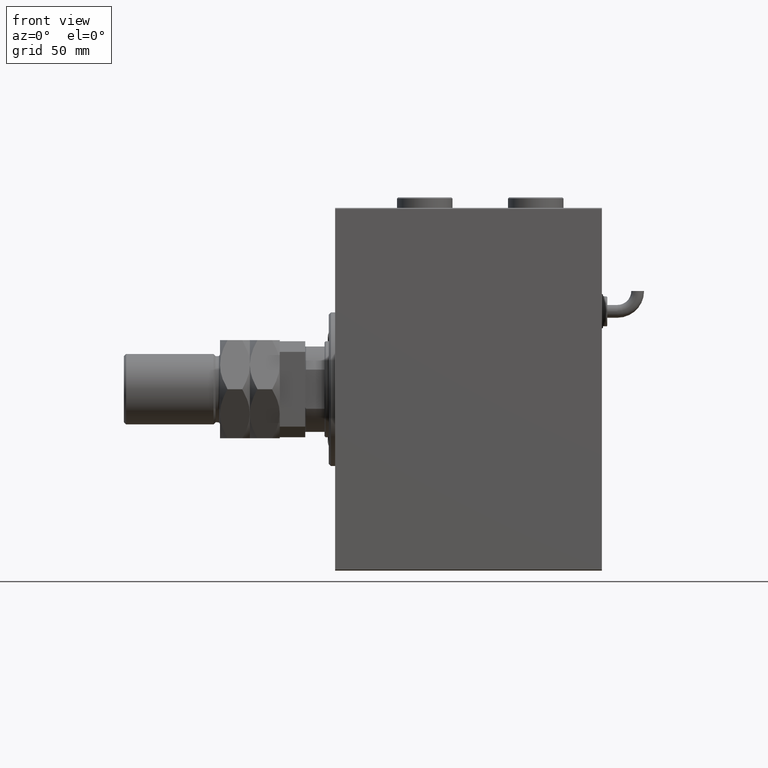
[diagram: clean part render]
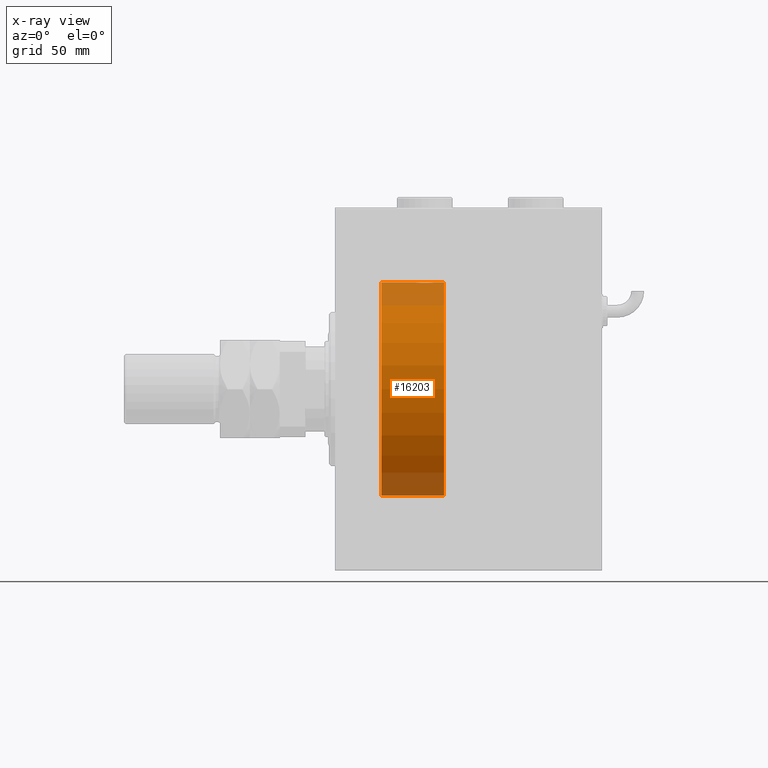
[diagram: x-ray — body ghosted, one internal face saturated and labeled with its STEP entity id]
A machine part, front view, then the same camera in x-ray: the body is ghosted and one INTERNAL B-rep face — a face not visible from any outside direction — is saturated and labeled: STEP entity #16203.
In plain terms, the highlighted cylindrical surface (partial cylindrical patch) has radius 50 mm, axis along (-1, -0, -0).
Its self-contained STEP definition (entity closure, byte-faithful):
#1111 = CARTESIAN_POINT ( 'NONE',  ( 51.00000000000000711, 0.000000000000000000, 0.000000000000000000 ) ) ;
#1148 = EDGE_CURVE ( 'NONE', #29917, #13788, #14360, .T. ) ;
#1401 = LINE ( 'NONE', #58990, #21877 ) ;
#1895 = VERTEX_POINT ( 'NONE', #3718 ) ;
#1946 = CARTESIAN_POINT ( 'NONE',  ( 45.68602832121950286, -2.133925816755187110, 49.95498245321557818 ) ) ;
#1950 = CARTESIAN_POINT ( 'NONE',  ( 40.63289352445426772, -4.033756670430848068, -49.83713703490974467 ) ) ;
#2584 = CARTESIAN_POINT ( 'NONE',  ( 37.96920203844656783, -1.375411031076042789, -49.98173289062309976 ) ) ;
#2889 = CARTESIAN_POINT ( 'NONE',  ( 38.31397167878049714, -2.133925816755183114, -49.95498245321557818 ) ) ;
#3201 = CARTESIAN_POINT ( 'NONE',  ( 44.80697831839309941, -3.203153387937325736, 49.89767833571684719 ) ) ;
#3226 = EDGE_CURVE ( 'NONE', #18133, #21623, #10389, .T. ) ;
#3718 = CARTESIAN_POINT ( 'NONE',  ( 46.25000000000000000, 6.123233970928975205E-15, -50.00000000000000000 ) ) ;
#4027 = VECTOR ( 'NONE', #29621, 1000.000000000000000 ) ;
#4465 = CARTESIAN_POINT ( 'NONE',  ( 37.75000000000000711, -2.480809774739037926E-23, 50.00000000000000000 ) ) ;
#5937 = CARTESIAN_POINT ( 'NONE',  ( 51.00000000000000711, 6.123233995736766085E-15, -50.00000000000000000 ) ) ;
#6007 = DIRECTION ( 'NONE',  ( -1.000000000000000000, 0.000000000000000000, 0.000000000000000000 ) ) ;
#6741 = CARTESIAN_POINT ( 'NONE',  ( 43.10323296034216156, -4.113647494206476907, -49.83052139214892406 ) ) ;
#7047 = CARTESIAN_POINT ( 'NONE',  ( 43.09737617879038396, -4.115209769591117173, 49.83039196709102470 ) ) ;
#7991 = CARTESIAN_POINT ( 'NONE',  ( 43.36710647554575360, -4.033756670430856062, 49.83713703490974467 ) ) ;
#9262 = CARTESIAN_POINT ( 'NONE',  ( 21.60000000000000142, 0.000000000000000000, 50.00000000000000000 ) ) ;
#10389 = LINE ( 'NONE', #5937, #50876 ) ;
#10570 = CARTESIAN_POINT ( 'NONE',  ( 46.25000000000000000, 6.123233970928975205E-15, -50.00000000000000000 ) ) ;
#11834 = CARTESIAN_POINT ( 'NONE',  ( 42.55408564880149669, -4.222816005855214883, 49.82138837911247009 ) ) ;
#11840 = CARTESIAN_POINT ( 'NONE',  ( 43.37333436579036317, -4.031616700143180410, -49.83731072121798888 ) ) ;
#12461 = CARTESIAN_POINT ( 'NONE',  ( 39.19302168160691480, -3.203153387937319962, -49.89767833571684719 ) ) ;
#13381 = CARTESIAN_POINT ( 'NONE',  ( 37.75000000000000711, -7.073857814331912646E-15, -50.00000000000000000 ) ) ;
#13788 = VERTEX_POINT ( 'NONE', #9262 ) ;
#14143 = CARTESIAN_POINT ( 'NONE',  ( 51.00000000000000711, 0.000000000000000000, 0.000000000000000000 ) ) ;
#14360 = LINE ( 'NONE', #33436, #4027 ) ;
#14450 = DIRECTION ( 'NONE',  ( 0.000000000000000000, 0.000000000000000000, 1.000000000000000000 ) ) ;
#15570 = AXIS2_PLACEMENT_3D ( 'NONE', #14143, #28766, #14450 ) ;
#15649 = CARTESIAN_POINT ( 'NONE',  ( 46.25000000000000000, -0.2773743941468464480, -50.00000000000000711 ) ) ;
#15863 = CIRCLE ( 'NONE', #51398, 50.00000000000000000 ) ;
#15958 = CARTESIAN_POINT ( 'NONE',  ( 43.88744739392799943, -3.818052230167712668, -49.85412671291930309 ) ) ;
#16203 = ADVANCED_FACE ( 'NONE', ( #37981 ), #62183, .F. ) ;
#16270 = CARTESIAN_POINT ( 'NONE',  ( 45.68937155679385853, -2.128188802142358949, -49.95522967821975158 ) ) ;
#16581 = CARTESIAN_POINT ( 'NONE',  ( 38.17899418014773971, -1.881229021238129517, 49.96525240872482954 ) ) ;
#16887 = CARTESIAN_POINT ( 'NONE',  ( 41.44002132304353125, -4.222042462213131842, 49.82145436824653473 ) ) ;
#17812 = CARTESIAN_POINT ( 'NONE',  ( 37.75000000000000711, -2.480809774739037926E-23, 50.00000000000000000 ) ) ;
#18133 = VERTEX_POINT ( 'NONE', #41592 ) ;
#18750 = CARTESIAN_POINT ( 'NONE',  ( 46.03079796155342507, -1.375411031076047008, 49.98173289062309976 ) ) ;
#19253 = ORIENTED_EDGE ( 'NONE', *, *, #48140, .T. ) ;
#20512 = DIRECTION ( 'NONE',  ( -1.000000000000000000, 0.000000000000000000, 0.000000000000000000 ) ) ;
#21348 = CARTESIAN_POINT ( 'NONE',  ( 45.81839248987871827, -1.886522330773423128, 49.96505190380066352 ) ) ;
#21352 = CARTESIAN_POINT ( 'NONE',  ( 40.11782950515556934, -3.820681512513381506, -49.85392475515401145 ) ) ;
#21443 = EDGE_LOOP ( 'NONE', ( #39191, #39267, #31153, #22257, #19253, #28801, #48895, #44135 ) ) ;
#21623 = VERTEX_POINT ( 'NONE', #35836 ) ;
#21877 = VECTOR ( 'NONE', #49419, 1000.000000000000000 ) ;
#21976 = CARTESIAN_POINT ( 'NONE',  ( 38.18160751012128884, -1.886522330773416911, -49.96505190380066352 ) ) ;
#22069 = VERTEX_POINT ( 'NONE', #46255 ) ;
#22257 = ORIENTED_EDGE ( 'NONE', *, *, #3226, .T. ) ;
#22288 = CARTESIAN_POINT ( 'NONE',  ( 37.77689247201000455, -0.5531336717329051744, 49.99769193709643389 ) ) ;
#22684 = CARTESIAN_POINT ( 'NONE',  ( 51.00000000000000711, 0.000000000000000000, 50.00000000000000000 ) ) ;
#22903 = CARTESIAN_POINT ( 'NONE',  ( 37.75000000000001421, -0.2808785465865695774, -50.00000000000001421 ) ) ;
#23169 = DIRECTION ( 'NONE',  ( -1.000000000000000000, -0.000000000000000000, -0.000000000000000000 ) ) ;
#23206 = CARTESIAN_POINT ( 'NONE',  ( 46.22242635520780851, -0.5587117664567147202, 49.99763378604802000 ) ) ;
#24190 = EDGE_CURVE ( 'NONE', #36857, #1895, #1401, .T. ) ;
#24551 = EDGE_CURVE ( 'NONE', #29917, #22069, #47765, .T. ) ;
#25972 = DIRECTION ( 'NONE',  ( -1.000000000000000000, -0.000000000000000000, -0.000000000000000000 ) ) ;
#26135 = CARTESIAN_POINT ( 'NONE',  ( 46.03272642097311973, -1.369753890039645983, -49.98188917176553048 ) ) ;
#26448 = CARTESIAN_POINT ( 'NONE',  ( 45.37519984081967550, -2.597781786597471942, 49.93300953359122474 ) ) ;
#26756 = CARTESIAN_POINT ( 'NONE',  ( 44.12631644875079928, -3.690299572754728530, 49.86386974736159772 ) ) ;
#27069 = CARTESIAN_POINT ( 'NONE',  ( 40.89676703965783844, -4.113647494206490229, 49.83052139214891696 ) ) ;
#27073 = CARTESIAN_POINT ( 'NONE',  ( 37.77757364479220570, -0.5587117664567219366, -49.99763378604802000 ) ) ;
#27374 = CARTESIAN_POINT ( 'NONE',  ( 43.88217049484444487, -3.820681512513388611, 49.85392475515401145 ) ) ;
#27379 = CARTESIAN_POINT ( 'NONE',  ( 38.62480015918034582, -2.597781786597465725, -49.93300953359122474 ) ) ;
#27995 = CARTESIAN_POINT ( 'NONE',  ( 46.25000000000000711, -0.2808785465865644704, 50.00000000000001421 ) ) ;
#28766 = DIRECTION ( 'NONE',  ( -1.000000000000000000, -0.000000000000000000, -0.000000000000000000 ) ) ;
#28801 = ORIENTED_EDGE ( 'NONE', *, *, #1148, .F. ) ;
#29621 = DIRECTION ( 'NONE',  ( -1.000000000000000000, -0.000000000000000000, -0.000000000000000000 ) ) ;
#29917 = VERTEX_POINT ( 'NONE', #4465 ) ;
#29969 = CARTESIAN_POINT ( 'NONE',  ( 41.44591435119853173, -4.222816005855206001, -49.82138837911246299 ) ) ;
#30604 = CARTESIAN_POINT ( 'NONE',  ( 40.90262382120964446, -4.115209769591110067, -49.83039196709102470 ) ) ;
#31153 = ORIENTED_EDGE ( 'NONE', *, *, #56920, .T. ) ;
#31211 = CARTESIAN_POINT ( 'NONE',  ( 37.96727357902688738, -1.369753890039655753, 49.98188917176553048 ) ) ;
#31833 = CARTESIAN_POINT ( 'NONE',  ( 39.18846933484581285, -3.199146701881677934, 49.89793607725460589 ) ) ;
#32461 = CARTESIAN_POINT ( 'NONE',  ( 45.19921927961282648, -2.811461347331111416, 49.92127983148852621 ) ) ;
#33203 = CARTESIAN_POINT ( 'NONE',  ( 51.00000000000000711, 6.123233995736766085E-15, -50.00000000000000000 ) ) ;
#33336 = LINE ( 'NONE', #55747, #54042 ) ;
#33436 = CARTESIAN_POINT ( 'NONE',  ( 51.00000000000000711, 0.000000000000000000, 50.00000000000000000 ) ) ;
#35034 = CARTESIAN_POINT ( 'NONE',  ( 45.37881717263736192, -2.593114840406122390, -49.93325460257641168 ) ) ;
#35344 = CARTESIAN_POINT ( 'NONE',  ( 42.28395287026698668, -4.249777379711400904, -49.81906655360197789 ) ) ;
#35662 = CARTESIAN_POINT ( 'NONE',  ( 46.11431913306007857, -1.101350136471736629, -49.98862054280448319 ) ) ;
#35836 = CARTESIAN_POINT ( 'NONE',  ( 21.60000000000000142, 6.123233995736766085E-15, -50.00000000000000000 ) ) ;
#35974 = CARTESIAN_POINT ( 'NONE',  ( 42.27724927037917979, -4.250219976861652427, 49.81902879621013369 ) ) ;
#35978 = CARTESIAN_POINT ( 'NONE',  ( 39.87368355124922203, -3.690299572754720980, -49.86386974736159772 ) ) ;
#36535 = CIRCLE ( 'NONE', #52783, 50.00000000000000000 ) ;
#36606 = CARTESIAN_POINT ( 'NONE',  ( 38.80078072038717352, -2.811461347331107419, -49.92127983148852621 ) ) ;
#36857 = VERTEX_POINT ( 'NONE', #33203 ) ;
#36910 = CARTESIAN_POINT ( 'NONE',  ( 39.40687279114045083, -3.378657745070629659, 49.88595615988430154 ) ) ;
#37981 = FACE_OUTER_BOUND ( 'NONE', #21443, .T. ) ;
#38770 = CARTESIAN_POINT ( 'NONE',  ( 46.25000000000000000, -8.399120439301708033E-16, 50.00000000000000000 ) ) ;
#39191 = ORIENTED_EDGE ( 'NONE', *, *, #60882, .F. ) ;
#39267 = ORIENTED_EDGE ( 'NONE', *, *, #24190, .T. ) ;
#39379 = CARTESIAN_POINT ( 'NONE',  ( 21.60000000000000142, 0.000000000000000000, 0.000000000000000000 ) ) ;
#39918 = DIRECTION ( 'NONE',  ( 0.000000000000000000, 0.000000000000000000, 1.000000000000000000 ) ) ;
#40136 = CARTESIAN_POINT ( 'NONE',  ( 44.59312720885956338, -3.378657745070617224, -49.88595615988430154 ) ) ;
#41061 = CARTESIAN_POINT ( 'NONE',  ( 39.86863600553844122, -3.687400765141535253, 49.86408552998298660 ) ) ;
#41064 = CARTESIAN_POINT ( 'NONE',  ( 44.81153066515419425, -3.199146701881665500, -49.89793607725460589 ) ) ;
#41592 = CARTESIAN_POINT ( 'NONE',  ( 37.75000000000000711, -7.073857814331912646E-15, -50.00000000000000000 ) ) ;
#41690 = CARTESIAN_POINT ( 'NONE',  ( 37.75000000000001421, -0.2773743941468522767, 50.00000000000000711 ) ) ;
#44135 = ORIENTED_EDGE ( 'NONE', *, *, #62973, .F. ) ;
#44737 = B_SPLINE_CURVE_WITH_KNOTS ( 'NONE', 3,
 ( #10570, #15649, #59853, #35662, #26135, #54458, #16270, #35034, #50288, #41064, #40136, #55087, #15958, #11840, #6741, #60159, #35344, #45519, #29969, #30604, #1950, #21352, #35978, #55402, #12461, #36606, #27379, #2889, #21976, #2584, #60798, #27073, #22903, #13381 ),
 .UNSPECIFIED., .F., .F.,
 ( 4, 2, 2, 2, 2, 2, 2, 2, 2, 2, 2, 2, 2, 2, 2, 2, 4 ),
 ( 0.01329343152928756308, 0.01412407817529634686, 0.01495472482130513064, 0.01578537146731391269, 0.01661601811332269821, 0.01744666475933148025, 0.01827731140534026577, 0.01910795805134904782, 0.01993860469735782986, 0.02076925134336661538, 0.02159989798937540090, 0.02243054463538418294, 0.02326119128139296499, 0.02409183792740175051, 0.02492248457341053255, 0.02575313121941931460, 0.02658377786542810012 ),
 .UNSPECIFIED. ) ;
#45519 = CARTESIAN_POINT ( 'NONE',  ( 41.72275072962083442, -4.250219976861640880, -49.81902879621014080 ) ) ;
#46255 = CARTESIAN_POINT ( 'NONE',  ( 46.25000000000000000, -8.399120439301708033E-16, 50.00000000000000000 ) ) ;
#46767 = CARTESIAN_POINT ( 'NONE',  ( 44.58820214676201488, -3.382416624899787561, 49.88570010427956447 ) ) ;
#47765 = B_SPLINE_CURVE_WITH_KNOTS ( 'NONE', 3,
 ( #17812, #41690, #22288, #55398, #31211, #16581, #50909, #51852, #50586, #31833, #36910, #41061, #56029, #51540, #27069, #16887, #61111, #35974, #11834, #7047, #7991, #27374, #26756, #46767, #3201, #32461, #26448, #1946, #21348, #18750, #52788, #23206, #27995, #38770 ),
 .UNSPECIFIED., .F., .F.,
 ( 4, 2, 2, 2, 2, 2, 2, 2, 2, 2, 2, 2, 2, 2, 2, 2, 4 ),
 ( 0.01329343152928753012, 0.01412407817529631390, 0.01495472482130509768, 0.01578537146731388147, 0.01661601811332266698, 0.01744666475933144903, 0.01827731140534023455, 0.01910795805134901659, 0.01993860469735780211, 0.02076925134336658416, 0.02159989798937536967, 0.02243054463538415172, 0.02326119128139293724, 0.02409183792740172275, 0.02492248457341050480, 0.02575313121941928685, 0.02658377786542807236 ),
 .UNSPECIFIED. ) ;
#48140 = EDGE_CURVE ( 'NONE', #21623, #13788, #15863, .T. ) ;
#48895 = ORIENTED_EDGE ( 'NONE', *, *, #24551, .T. ) ;
#49419 = DIRECTION ( 'NONE',  ( -1.000000000000000000, -0.000000000000000000, -0.000000000000000000 ) ) ;
#49550 = DIRECTION ( 'NONE',  ( 0.000000000000000000, 0.000000000000000000, 1.000000000000000000 ) ) ;
#50288 = CARTESIAN_POINT ( 'NONE',  ( 45.20303561951990901, -2.807099414226270184, -49.92152599098507437 ) ) ;
#50586 = CARTESIAN_POINT ( 'NONE',  ( 38.79696438048009099, -2.807099414226282175, 49.92152599098507437 ) ) ;
#50876 = VECTOR ( 'NONE', #25972, 1000.000000000000000 ) ;
#50909 = CARTESIAN_POINT ( 'NONE',  ( 38.31062844320614147, -2.128188802142370051, 49.95522967821975158 ) ) ;
#51398 = AXIS2_PLACEMENT_3D ( 'NONE', #39379, #6007, #49550 ) ;
#51540 = CARTESIAN_POINT ( 'NONE',  ( 40.62666563420963683, -4.031616700143192844, 49.83731072121799599 ) ) ;
#51852 = CARTESIAN_POINT ( 'NONE',  ( 38.62118282736263097, -2.593114840406134380, 49.93325460257641168 ) ) ;
#52783 = AXIS2_PLACEMENT_3D ( 'NONE', #1111, #20512, #39918 ) ;
#52788 = CARTESIAN_POINT ( 'NONE',  ( 46.11249701080335228, -1.108337267831492889, 49.98846998601261760 ) ) ;
#54042 = VECTOR ( 'NONE', #23169, 1000.000000000000000 ) ;
#54220 = VERTEX_POINT ( 'NONE', #22684 ) ;
#54458 = CARTESIAN_POINT ( 'NONE',  ( 45.82100581985226739, -1.881229021238118859, -49.96525240872482954 ) ) ;
#55087 = CARTESIAN_POINT ( 'NONE',  ( 44.13136399446156588, -3.687400765141522818, -49.86408552998298660 ) ) ;
#55398 = CARTESIAN_POINT ( 'NONE',  ( 37.88568086693992143, -1.101350136471744623, 49.98862054280448319 ) ) ;
#55402 = CARTESIAN_POINT ( 'NONE',  ( 39.41179785323799933, -3.382416624899781787, -49.88570010427956447 ) ) ;
#55747 = CARTESIAN_POINT ( 'NONE',  ( 51.00000000000000711, 0.000000000000000000, 50.00000000000000000 ) ) ;
#56029 = CARTESIAN_POINT ( 'NONE',  ( 40.11255260607201478, -3.818052230167724215, 49.85412671291930309 ) ) ;
#56920 = EDGE_CURVE ( 'NONE', #1895, #18133, #44737, .T. ) ;
#58990 = CARTESIAN_POINT ( 'NONE',  ( 51.00000000000000711, 6.123233995736766085E-15, -50.00000000000000000 ) ) ;
#59853 = CARTESIAN_POINT ( 'NONE',  ( 46.22310752799000966, -0.5531336717328987351, -49.99769193709643389 ) ) ;
#60159 = CARTESIAN_POINT ( 'NONE',  ( 42.55997867695648296, -4.222042462213118519, -49.82145436824653473 ) ) ;
#60798 = CARTESIAN_POINT ( 'NONE',  ( 37.88750298919666903, -1.108337267831496886, -49.98846998601261760 ) ) ;
#60882 = EDGE_CURVE ( 'NONE', #36857, #54220, #36535, .T. ) ;
#61111 = CARTESIAN_POINT ( 'NONE',  ( 41.71604712973302753, -4.249777379711412451, 49.81906655360197789 ) ) ;
#62183 = CYLINDRICAL_SURFACE ( 'NONE', #15570, 50.00000000000000000 ) ;
#62973 = EDGE_CURVE ( 'NONE', #54220, #22069, #33336, .T. ) ;